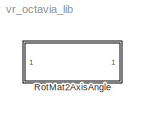
MODEL vr_octavia_lib
KIND library
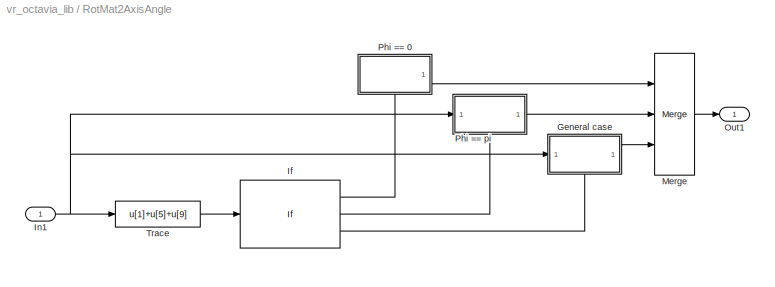
BLOCK [SubSystem] RotMat2AxisAngle
  MaskDescription = Converts Rotation Matrix (defined columnwise as 9-element column vector) into\nthe Axis / Angle rotation representation used for defining rotations in VRML.
  MaskDisplay = text (0.1, 0.2, 'VR');\nplot ([0.2 0.4 0.4 0.2 0.2], [0.4 0.4 0.8 0.8 0.4]);\nplot ([0.25 0.25],[0.5 0.7]);\nplot ([0.3 0.3],[0.5 0.7]);\nplot ([0.35 0.35],[0.5 0.7]);\nplot ([0.5 0.7 0.6 0.7 0.6], [0.6 0.6 0.7 0.6 0.5]);\nplot ([0.8 0.9],[0.4 0.8]);
  MaskHelp = Converts Rotation Matrix (defined columnwise as 9-element column vector) into\nthe Axis / Angle rotation representation used for defining rotations in VRML.
  MaskIconFrame = on
  MaskIconOpaque = on
  MaskIconRotate = none
  MaskIconUnits = normalized
  MinAlgLoopOccurrences = off
  Ports = [1, 1]
  PropExecContextAcrossSSBoundary = on
  RTWSystemCode = Auto
  TreatAsAtomicUnit = off
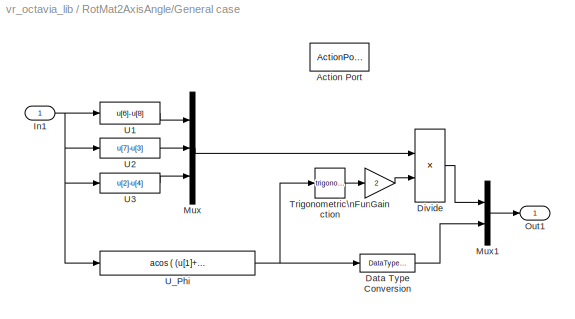
BLOCK [SubSystem] RotMat2AxisAngle/General case
  MinAlgLoopOccurrences = off
  Ports = [1, 1, 0, 0, 0, 0, 0, 1]
  PropExecContextAcrossSSBoundary = on
  RTWSystemCode = Auto
  TreatAsAtomicUnit = on
BLOCK [ActionPort] RotMat2AxisAngle/General case/Action Port
BLOCK [DataTypeConversion] RotMat2AxisAngle/General case/Data Type Conversion
  RndMeth = Floor
  SaturateOnIntegerOverflow = off
BLOCK [Product] RotMat2AxisAngle/General case/Divide
  InputSameDT = off
  Inputs = */
  OutDataTypeMode = Inherit via internal rule
  OutScaling = 2^-10
  Ports = [2, 1]
  RndMeth = Floor
  SaturateOnIntegerOverflow = off
BLOCK [Gain] RotMat2AxisAngle/General case/Gain
  Gain = 2
  OutDataTypeMode = Inherit via internal rule
  ParameterDataTypeMode = Inherit via internal rule
  SaturateOnIntegerOverflow = off
BLOCK [Inport] RotMat2AxisAngle/General case/In1
  IconDisplay = Port number
  LatchInput = off
BLOCK [Mux] RotMat2AxisAngle/General case/Mux
  DisplayOption = bar
  Inputs = 3
  Ports = [3, 1]
BLOCK [Mux] RotMat2AxisAngle/General case/Mux1
  DisplayOption = bar
  Inputs = 2
  Ports = [2, 1]
BLOCK [Outport] RotMat2AxisAngle/General case/Out1
  BusOutputAsStruct = off
  IconDisplay = Port number
BLOCK [Trigonometry] RotMat2AxisAngle/General case/Trigonometric\nFunction
  Ports = [1, 1]
BLOCK [Fcn] RotMat2AxisAngle/General case/U1
  Expr = u[6]-u[8]
BLOCK [Fcn] RotMat2AxisAngle/General case/U2
  Expr = u[7]-u[3]
BLOCK [Fcn] RotMat2AxisAngle/General case/U3
  Expr = u[2]-u[4]
BLOCK [Fcn] RotMat2AxisAngle/General case/U_Phi
  Expr = acos ( (u[1]+u[5]+u[9] - 1 ) / 2 )
BLOCK [If] RotMat2AxisAngle/If
  ElseIfExpressions = u1 == -1
  IfExpression = u1 == 3
  Ports = [1, 3]
BLOCK [Inport] RotMat2AxisAngle/In1
  IconDisplay = Port number
  LatchInput = off
BLOCK [Merge] RotMat2AxisAngle/Merge
  Inputs = 3
  Ports = [3, 1]
BLOCK [Outport] RotMat2AxisAngle/Out1
  BusOutputAsStruct = off
  IconDisplay = Port number
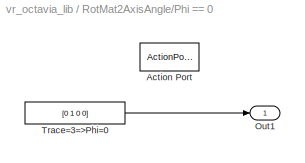
BLOCK [SubSystem] RotMat2AxisAngle/Phi == 0
  MinAlgLoopOccurrences = off
  Ports = [0, 1, 0, 0, 0, 0, 0, 1]
  PropExecContextAcrossSSBoundary = on
  RTWSystemCode = Auto
  TreatAsAtomicUnit = on
BLOCK [ActionPort] RotMat2AxisAngle/Phi == 0/Action Port
BLOCK [Outport] RotMat2AxisAngle/Phi == 0/Out1
  BusOutputAsStruct = off
  IconDisplay = Port number
  InitialOutput = [0 1 0 0]
BLOCK [Constant] RotMat2AxisAngle/Phi == 0/Trace=3=>Phi=0
  SampleTime = Inf
  Value = [0 1 0 0]
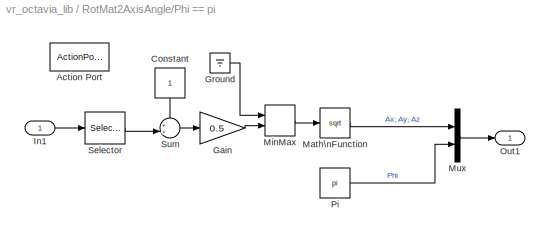
BLOCK [SubSystem] RotMat2AxisAngle/Phi == pi
  MinAlgLoopOccurrences = off
  Ports = [1, 1, 0, 0, 0, 0, 0, 1]
  PropExecContextAcrossSSBoundary = on
  RTWSystemCode = Auto
  TreatAsAtomicUnit = on
BLOCK [ActionPort] RotMat2AxisAngle/Phi == pi/Action Port
BLOCK [Constant] RotMat2AxisAngle/Phi == pi/Constant
BLOCK [Gain] RotMat2AxisAngle/Phi == pi/Gain
  Gain = 0.5
  OutDataTypeMode = Inherit via internal rule
  ParameterDataTypeMode = Inherit via internal rule
  SaturateOnIntegerOverflow = off
BLOCK [Ground] RotMat2AxisAngle/Phi == pi/Ground
BLOCK [Inport] RotMat2AxisAngle/Phi == pi/In1
  IconDisplay = Port number
  LatchInput = off
BLOCK [Math] RotMat2AxisAngle/Phi == pi/Math\nFunction
  Operator = sqrt
  Ports = [1, 1]
BLOCK [MinMax] RotMat2AxisAngle/Phi == pi/MinMax
  Function = max
  InputSameDT = off
  Inputs = 2
  Ports = [2, 1]
  SaturateOnIntegerOverflow = off
BLOCK [Mux] RotMat2AxisAngle/Phi == pi/Mux
  DisplayOption = bar
  Inputs = 2
  Ports = [2, 1]
BLOCK [Outport] RotMat2AxisAngle/Phi == pi/Out1
  BusOutputAsStruct = off
  IconDisplay = Port number
  InitialOutput = [0 0 0 pi]
BLOCK [Constant] RotMat2AxisAngle/Phi == pi/Pi
  SampleTime = Inf
  Value = pi
BLOCK [Selector] RotMat2AxisAngle/Phi == pi/Selector
  Elements = [1 5 9]
  InputPortWidth = 9
  Ports = [1, 1]
BLOCK [Sum] RotMat2AxisAngle/Phi == pi/Sum
  IconShape = round
  InputSameDT = off
  Inputs = ++|
  OutDataTypeMode = Inherit via internal rule
  Ports = [2, 1]
  SaturateOnIntegerOverflow = off
BLOCK [Fcn] RotMat2AxisAngle/Trace
  Expr = u[1]+u[5]+u[9]
LINE RotMat2AxisAngle/General case/Data Type Conversion:1 -> RotMat2AxisAngle/General case/Mux1:2
LINE RotMat2AxisAngle/General case/Divide:1 -> RotMat2AxisAngle/General case/Mux1:1
LINE RotMat2AxisAngle/General case/Gain:1 -> RotMat2AxisAngle/General case/Divide:2
NET RotMat2AxisAngle/General case/In1:1 -> RotMat2AxisAngle/General case/U1:1, RotMat2AxisAngle/General case/U2:1, RotMat2AxisAngle/General case/U3:1, RotMat2AxisAngle/General case/U_Phi:1
LINE RotMat2AxisAngle/General case/Mux1:1 -> RotMat2AxisAngle/General case/Out1:1
LINE RotMat2AxisAngle/General case/Mux:1 -> RotMat2AxisAngle/General case/Divide:1
LINE RotMat2AxisAngle/General case/Trigonometric\nFunction:1 -> RotMat2AxisAngle/General case/Gain:1
LINE RotMat2AxisAngle/General case/U1:1 -> RotMat2AxisAngle/General case/Mux:1
LINE RotMat2AxisAngle/General case/U2:1 -> RotMat2AxisAngle/General case/Mux:2
LINE RotMat2AxisAngle/General case/U3:1 -> RotMat2AxisAngle/General case/Mux:3
NET RotMat2AxisAngle/General case/U_Phi:1 -> RotMat2AxisAngle/General case/Data Type Conversion:1, RotMat2AxisAngle/General case/Trigonometric\nFunction:1
LINE RotMat2AxisAngle/General case:1 -> RotMat2AxisAngle/Merge:3
LINE RotMat2AxisAngle/If:1 -> RotMat2AxisAngle/Phi == 0:ifaction
LINE RotMat2AxisAngle/If:2 -> RotMat2AxisAngle/Phi == pi:ifaction
LINE RotMat2AxisAngle/If:3 -> RotMat2AxisAngle/General case:ifaction
NET RotMat2AxisAngle/In1:1 -> RotMat2AxisAngle/General case:1, RotMat2AxisAngle/Phi == pi:1, RotMat2AxisAngle/Trace:1
LINE RotMat2AxisAngle/Merge:1 -> RotMat2AxisAngle/Out1:1
LINE RotMat2AxisAngle/Phi == 0/Trace=3=>Phi=0:1 -> RotMat2AxisAngle/Phi == 0/Out1:1
LINE RotMat2AxisAngle/Phi == 0:1 -> RotMat2AxisAngle/Merge:1
LINE RotMat2AxisAngle/Phi == pi/Constant:1 -> RotMat2AxisAngle/Phi == pi/Sum:1
LINE RotMat2AxisAngle/Phi == pi/Gain:1 -> RotMat2AxisAngle/Phi == pi/MinMax:2
LINE RotMat2AxisAngle/Phi == pi/Ground:1 -> RotMat2AxisAngle/Phi == pi/MinMax:1
LINE RotMat2AxisAngle/Phi == pi/In1:1 -> RotMat2AxisAngle/Phi == pi/Selector:1
LINE RotMat2AxisAngle/Phi == pi/Math\nFunction:1 -> RotMat2AxisAngle/Phi == pi/Mux:1
LINE RotMat2AxisAngle/Phi == pi/MinMax:1 -> RotMat2AxisAngle/Phi == pi/Math\nFunction:1
LINE RotMat2AxisAngle/Phi == pi/Mux:1 -> RotMat2AxisAngle/Phi == pi/Out1:1
LINE RotMat2AxisAngle/Phi == pi/Pi:1 -> RotMat2AxisAngle/Phi == pi/Mux:2
LINE RotMat2AxisAngle/Phi == pi/Selector:1 -> RotMat2AxisAngle/Phi == pi/Sum:2
LINE RotMat2AxisAngle/Phi == pi/Sum:1 -> RotMat2AxisAngle/Phi == pi/Gain:1
LINE RotMat2AxisAngle/Phi == pi:1 -> RotMat2AxisAngle/Merge:2
LINE RotMat2AxisAngle/Trace:1 -> RotMat2AxisAngle/If:1
note: NET lines group one-source signal fan-out (src -> all destinations, sorted); 1:1 wires keep LINE
